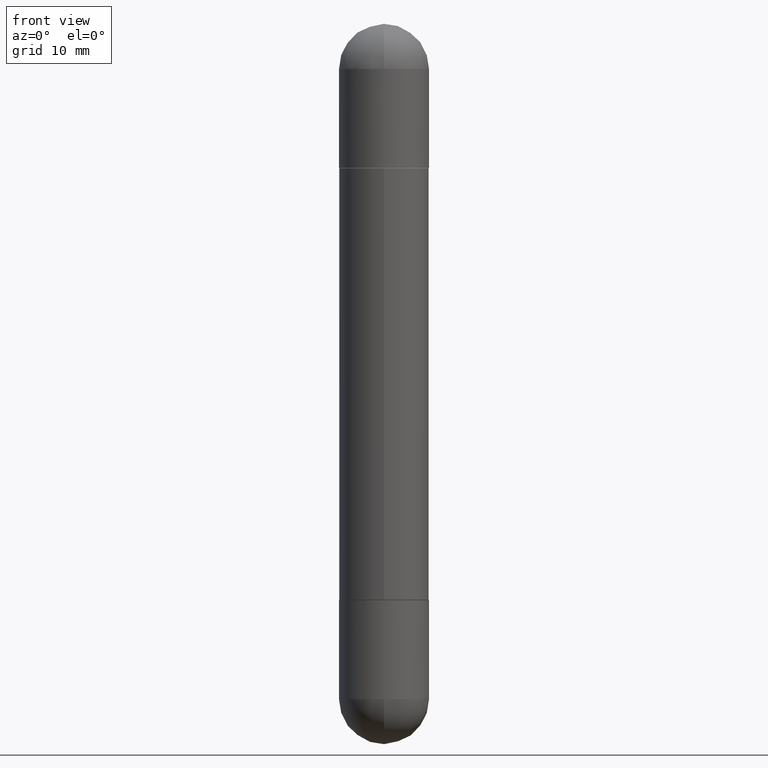
[diagram: clean part render]
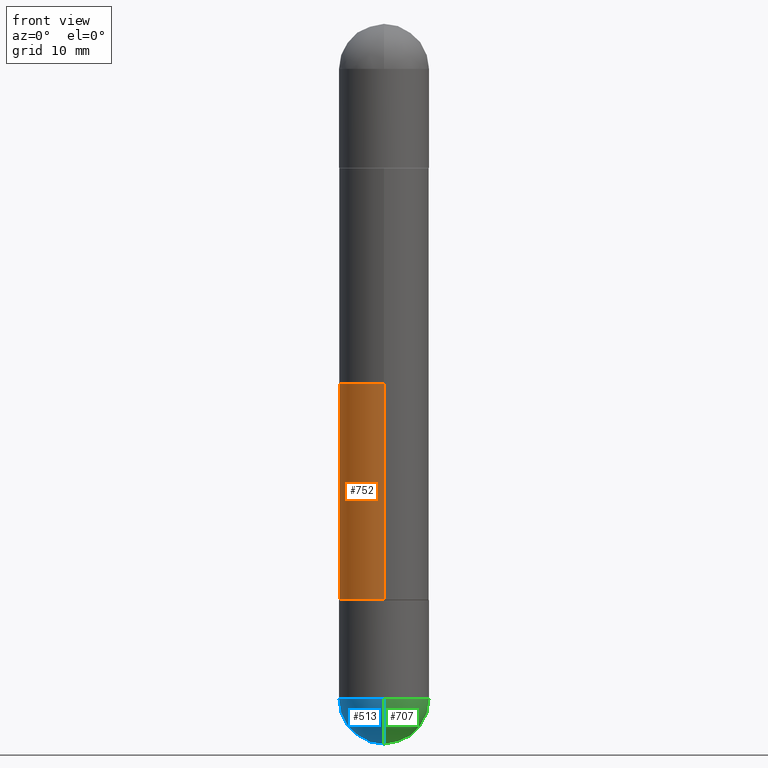
[diagram: same view with three faces highlighted in distinct colors, each labeled with its STEP entity id]
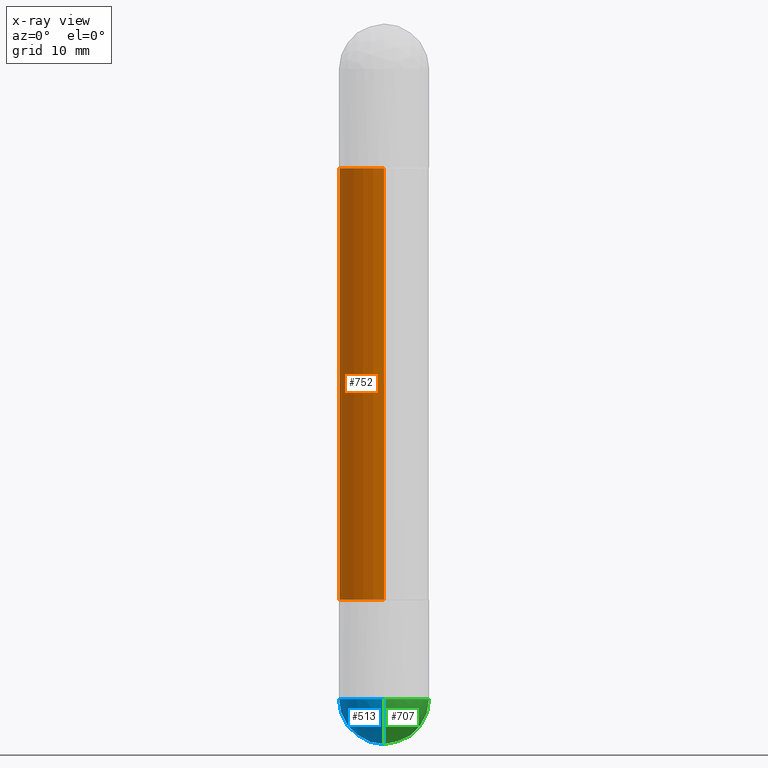
[diagram: x-ray of the same camera — body ghosted, the three highlighted faces saturated]
A machine part, front view with three faces highlighted in distinct colors.
The next image is the same camera in x-ray (body ghosted, the three faces saturated) — at least one of them is partly hidden behind the body in this view.
Their STEP definitions:

[orange] entity #752 — the highlighted cylindrical surface (partial cylindrical patch) has radius 3.9688 mm, axis along (-0, 0, -1).
#36 = DIRECTION ( 'NONE',  ( -2.444981061416011497E-29, 3.492179817113241133E-15, -1.000000000000000000 ) ) ;
#86 = EDGE_CURVE ( 'NONE', #684, #181, #685, .T. ) ;
#127 = ORIENTED_EDGE ( 'NONE', *, *, #508, .F. ) ;
#142 = FACE_OUTER_BOUND ( 'NONE', #307, .T. ) ;
#149 = CYLINDRICAL_SURFACE ( 'NONE', #201, 0.1562500000000001388 ) ;
#153 = CARTESIAN_POINT ( 'NONE',  ( -1.091087918388432039E-15, -0.1562500000000072720, -0.5010000000000013332 ) ) ;
#157 = VECTOR ( 'NONE', #36, 39.37007874015748143 ) ;
#160 = CARTESIAN_POINT ( 'NONE',  ( 4.887517141770606822E-29, -6.980867454409367849E-15, -0.5010000000000007780 ) ) ;
#181 = VERTEX_POINT ( 'NONE', #320 ) ;
#195 = DIRECTION ( 'NONE',  ( -2.444981061416011497E-29, 3.492179817113241133E-15, -1.000000000000000000 ) ) ;
#201 = AXIS2_PLACEMENT_3D ( 'NONE', #702, #398, #642 ) ;
#217 = EDGE_CURVE ( 'NONE', #684, #261, #763, .T. ) ;
#219 = DIRECTION ( 'NONE',  ( 2.444981061416011497E-29, -3.492179817113241133E-15, 1.000000000000000000 ) ) ;
#250 = AXIS2_PLACEMENT_3D ( 'NONE', #160, #219, #586 ) ;
#261 = VERTEX_POINT ( 'NONE', #153 ) ;
#272 = DIRECTION ( 'NONE',  ( -2.444981061416011497E-29, 3.492179817113241133E-15, 1.000000000000000000 ) ) ;
#307 = EDGE_LOOP ( 'NONE', ( #784, #542, #786, #127 ) ) ;
#320 = CARTESIAN_POINT ( 'NONE',  ( 1.071952812151833755E-15, 0.1562499999999933109, -1.999000000000000554 ) ) ;
#336 = CARTESIAN_POINT ( 'NONE',  ( 1.071952812151852491E-15, 0.1562499999999932832, -0.5010000000000002229 ) ) ;
#353 = VERTEX_POINT ( 'NONE', #782 ) ;
#398 = DIRECTION ( 'NONE',  ( -2.444981061416011497E-29, 3.492179817113241133E-15, -1.000000000000000000 ) ) ;
#409 = DIRECTION ( 'NONE',  ( -6.982962677686265922E-15, -1.000000000000000000, 3.496765431890250609E-15 ) ) ;
#425 = LINE ( 'NONE', #601, #157 ) ;
#456 = CARTESIAN_POINT ( 'NONE',  ( 4.887517141770606822E-29, -6.980867454409367849E-15, -1.998999999999999888 ) ) ;
#508 = EDGE_CURVE ( 'NONE', #261, #353, #425, .T. ) ;
#511 = VECTOR ( 'NONE', #195, 39.37007874015748143 ) ;
#542 = ORIENTED_EDGE ( 'NONE', *, *, #86, .T. ) ;
#586 = DIRECTION ( 'NONE',  ( -6.982962677686265922E-15, -1.000000000000000000, -3.496765431890250609E-15 ) ) ;
#601 = CARTESIAN_POINT ( 'NONE',  ( -1.091087918388479962E-15, -0.1562500000000001388, -2.500000000000001332 ) ) ;
#611 = AXIS2_PLACEMENT_3D ( 'NONE', #456, #272, #409 ) ;
#642 = DIRECTION ( 'NONE',  ( -6.982962677686265922E-15, -1.000000000000000000, -3.496765431890253764E-15 ) ) ;
#674 = CIRCLE ( 'NONE', #611, 0.1562500000000002776 ) ;
#684 = VERTEX_POINT ( 'NONE', #336 ) ;
#685 = LINE ( 'NONE', #755, #511 ) ;
#702 = CARTESIAN_POINT ( 'NONE',  ( 0.000000000000000000, 0.000000000000000000, -2.500000000000000444 ) ) ;
#717 = EDGE_CURVE ( 'NONE', #181, #353, #674, .T. ) ;
#752 = ADVANCED_FACE ( 'NONE', ( #142 ), #149, .T. ) ;
#755 = CARTESIAN_POINT ( 'NONE',  ( 1.071952812151802595E-15, 0.1562500000000001388, -2.500000000000000000 ) ) ;
#763 = CIRCLE ( 'NONE', #250, 0.1562500000000002776 ) ;
#782 = CARTESIAN_POINT ( 'NONE',  ( -1.091087918388432039E-15, -0.1562500000000072442, -1.998999999999999444 ) ) ;
#784 = ORIENTED_EDGE ( 'NONE', *, *, #217, .F. ) ;
#786 = ORIENTED_EDGE ( 'NONE', *, *, #717, .T. ) ;

[blue] entity #513 — the highlighted spherical surface has radius 3.9688 mm.
#28 = CARTESIAN_POINT ( 'NONE',  ( -1.110223024625101517E-15, -0.1562500000000085487, -2.343749999999999556 ) ) ;
#30 = CARTESIAN_POINT ( 'NONE',  ( 5.789233224183170584E-29, -9.193318162129576161E-15, -2.500000000000000000 ) ) ;
#73 = EDGE_CURVE ( 'NONE', #814, #509, #570, .T. ) ;
#102 = AXIS2_PLACEMENT_3D ( 'NONE', #251, #501, #192 ) ;
#137 = DIRECTION ( 'NONE',  ( 1.000000000000000000, -6.982962677686265922E-15, 4.883557194083112340E-29 ) ) ;
#151 = CARTESIAN_POINT ( 'NONE',  ( 5.400447736582527652E-29, -8.657341756053672891E-15, -2.343750000000000000 ) ) ;
#178 = VERTEX_POINT ( 'NONE', #28 ) ;
#192 = DIRECTION ( 'NONE',  ( 1.000000000000000000, -6.982962677686262766E-15, 0.000000000000000000 ) ) ;
#203 = CARTESIAN_POINT ( 'NONE',  ( 5.400447736582527652E-29, -8.657341756053672891E-15, -2.343750000000000000 ) ) ;
#207 = DIRECTION ( 'NONE',  ( -2.445468806185136597E-29, 3.491481338843145583E-15, 1.000000000000000000 ) ) ;
#251 = CARTESIAN_POINT ( 'NONE',  ( 5.731567514496413899E-29, -8.183159387913622595E-15, -2.343750000000000000 ) ) ;
#294 = FACE_OUTER_BOUND ( 'NONE', #672, .T. ) ;
#295 = CARTESIAN_POINT ( 'NONE',  ( 5.400447736582527652E-29, -8.657341756053672891E-15, -2.343750000000000000 ) ) ;
#306 = VERTEX_POINT ( 'NONE', #30 ) ;
#333 = CIRCLE ( 'NONE', #406, 0.1562500000000000000 ) ;
#357 = SPHERICAL_SURFACE ( 'NONE', #492, 0.1562500000000002498 ) ;
#403 = DIRECTION ( 'NONE',  ( -7.105427357601000281E-15, -1.000000000000000000, 0.000000000000000000 ) ) ;
#406 = AXIS2_PLACEMENT_3D ( 'NONE', #762, #207, #453 ) ;
#419 = AXIS2_PLACEMENT_3D ( 'NONE', #203, #137, #499 ) ;
#437 = ORIENTED_EDGE ( 'NONE', *, *, #73, .F. ) ;
#453 = DIRECTION ( 'NONE',  ( 1.000000000000000000, -6.982962677686262766E-15, 0.000000000000000000 ) ) ;
#492 = AXIS2_PLACEMENT_3D ( 'NONE', #295, #540, #793 ) ;
#499 = DIRECTION ( 'NONE',  ( 6.982962677686265922E-15, 1.000000000000000000, 0.000000000000000000 ) ) ;
#501 = DIRECTION ( 'NONE',  ( -2.445468806185136597E-29, 3.491481338843145583E-15, 1.000000000000000000 ) ) ;
#506 = AXIS2_PLACEMENT_3D ( 'NONE', #151, #773, #403 ) ;
#509 = VERTEX_POINT ( 'NONE', #734 ) ;
#513 = ADVANCED_FACE ( 'NONE', ( #294 ), #357, .T. ) ;
#539 = ORIENTED_EDGE ( 'NONE', *, *, #681, .F. ) ;
#540 = DIRECTION ( 'NONE',  ( -1.000000000000000000, 6.982962677686265922E-15, -4.883557194083112340E-29 ) ) ;
#541 = CIRCLE ( 'NONE', #419, 0.1562500000000002498 ) ;
#570 = CIRCLE ( 'NONE', #102, 0.1562500000000000000 ) ;
#589 = CARTESIAN_POINT ( 'NONE',  ( 1.091087918388535577E-15, 0.1562499999999916733, -2.343750000000000444 ) ) ;
#592 = EDGE_CURVE ( 'NONE', #306, #814, #541, .T. ) ;
#604 = ORIENTED_EDGE ( 'NONE', *, *, #693, .T. ) ;
#618 = ORIENTED_EDGE ( 'NONE', *, *, #592, .F. ) ;
#672 = EDGE_LOOP ( 'NONE', ( #618, #604, #539, #437 ) ) ;
#681 = EDGE_CURVE ( 'NONE', #509, #178, #333, .T. ) ;
#693 = EDGE_CURVE ( 'NONE', #306, #178, #790, .T. ) ;
#734 = CARTESIAN_POINT ( 'NONE',  ( -0.1562500000000000000, -6.472838008174800734E-15, -2.343750000000000000 ) ) ;
#762 = CARTESIAN_POINT ( 'NONE',  ( 5.731567514496413899E-29, -8.183159387913622595E-15, -2.343750000000000000 ) ) ;
#773 = DIRECTION ( 'NONE',  ( -1.000000000000000000, 7.105427357601001070E-15, -4.926315508542082329E-29 ) ) ;
#790 = CIRCLE ( 'NONE', #506, 0.1562500000000002498 ) ;
#793 = DIRECTION ( 'NONE',  ( 6.982962677686265922E-15, 1.000000000000000000, -3.496765431890251398E-15 ) ) ;
#814 = VERTEX_POINT ( 'NONE', #589 ) ;

[green] entity #707 — the highlighted spherical surface has radius 3.9688 mm.
#16 = CARTESIAN_POINT ( 'NONE',  ( 0.1562500000000000000, -8.674148951188436448E-15, -2.343750000000000000 ) ) ;
#18 = CIRCLE ( 'NONE', #198, 0.1562500000000000000 ) ;
#28 = CARTESIAN_POINT ( 'NONE',  ( -1.110223024625101517E-15, -0.1562500000000085487, -2.343749999999999556 ) ) ;
#30 = CARTESIAN_POINT ( 'NONE',  ( 5.789233224183170584E-29, -9.193318162129576161E-15, -2.500000000000000000 ) ) ;
#90 = FACE_OUTER_BOUND ( 'NONE', #725, .T. ) ;
#116 = AXIS2_PLACEMENT_3D ( 'NONE', #328, #765, #530 ) ;
#118 = ORIENTED_EDGE ( 'NONE', *, *, #693, .F. ) ;
#137 = DIRECTION ( 'NONE',  ( 1.000000000000000000, -6.982962677686265922E-15, 4.883557194083112340E-29 ) ) ;
#151 = CARTESIAN_POINT ( 'NONE',  ( 5.400447736582527652E-29, -8.657341756053672891E-15, -2.343750000000000000 ) ) ;
#168 = AXIS2_PLACEMENT_3D ( 'NONE', #569, #692, #262 ) ;
#178 = VERTEX_POINT ( 'NONE', #28 ) ;
#189 = ORIENTED_EDGE ( 'NONE', *, *, #613, .F. ) ;
#198 = AXIS2_PLACEMENT_3D ( 'NONE', #355, #347, #418 ) ;
#203 = CARTESIAN_POINT ( 'NONE',  ( 5.400447736582527652E-29, -8.657341756053672891E-15, -2.343750000000000000 ) ) ;
#241 = VERTEX_POINT ( 'NONE', #16 ) ;
#262 = DIRECTION ( 'NONE',  ( 1.000000000000000000, -6.982962677686262766E-15, 0.000000000000000000 ) ) ;
#306 = VERTEX_POINT ( 'NONE', #30 ) ;
#308 = ORIENTED_EDGE ( 'NONE', *, *, #592, .T. ) ;
#328 = CARTESIAN_POINT ( 'NONE',  ( 5.400447736582527652E-29, -8.657341756053672891E-15, -2.343750000000000000 ) ) ;
#332 = SPHERICAL_SURFACE ( 'NONE', #116, 0.1562500000000002498 ) ;
#347 = DIRECTION ( 'NONE',  ( -2.445468806185136597E-29, 3.491481338843145583E-15, 1.000000000000000000 ) ) ;
#355 = CARTESIAN_POINT ( 'NONE',  ( 5.731567514496413899E-29, -8.183159387913622595E-15, -2.343750000000000000 ) ) ;
#403 = DIRECTION ( 'NONE',  ( -7.105427357601000281E-15, -1.000000000000000000, 0.000000000000000000 ) ) ;
#418 = DIRECTION ( 'NONE',  ( 1.000000000000000000, -6.982962677686262766E-15, 0.000000000000000000 ) ) ;
#419 = AXIS2_PLACEMENT_3D ( 'NONE', #203, #137, #499 ) ;
#446 = EDGE_CURVE ( 'NONE', #178, #241, #18, .T. ) ;
#499 = DIRECTION ( 'NONE',  ( 6.982962677686265922E-15, 1.000000000000000000, 0.000000000000000000 ) ) ;
#506 = AXIS2_PLACEMENT_3D ( 'NONE', #151, #773, #403 ) ;
#521 = CIRCLE ( 'NONE', #168, 0.1562500000000000000 ) ;
#530 = DIRECTION ( 'NONE',  ( 6.982962677686265922E-15, 1.000000000000000000, -3.496765431890251398E-15 ) ) ;
#541 = CIRCLE ( 'NONE', #419, 0.1562500000000002498 ) ;
#569 = CARTESIAN_POINT ( 'NONE',  ( 5.731567514496413899E-29, -8.183159387913622595E-15, -2.343750000000000000 ) ) ;
#589 = CARTESIAN_POINT ( 'NONE',  ( 1.091087918388535577E-15, 0.1562499999999916733, -2.343750000000000444 ) ) ;
#592 = EDGE_CURVE ( 'NONE', #306, #814, #541, .T. ) ;
#613 = EDGE_CURVE ( 'NONE', #241, #814, #521, .T. ) ;
#692 = DIRECTION ( 'NONE',  ( -2.445468806185136597E-29, 3.491481338843145583E-15, 1.000000000000000000 ) ) ;
#693 = EDGE_CURVE ( 'NONE', #306, #178, #790, .T. ) ;
#707 = ADVANCED_FACE ( 'NONE', ( #90 ), #332, .T. ) ;
#725 = EDGE_LOOP ( 'NONE', ( #118, #308, #189, #757 ) ) ;
#757 = ORIENTED_EDGE ( 'NONE', *, *, #446, .F. ) ;
#765 = DIRECTION ( 'NONE',  ( -1.000000000000000000, 6.982962677686265922E-15, -4.883557194083112340E-29 ) ) ;
#773 = DIRECTION ( 'NONE',  ( -1.000000000000000000, 7.105427357601001070E-15, -4.926315508542082329E-29 ) ) ;
#790 = CIRCLE ( 'NONE', #506, 0.1562500000000002498 ) ;
#814 = VERTEX_POINT ( 'NONE', #589 ) ;